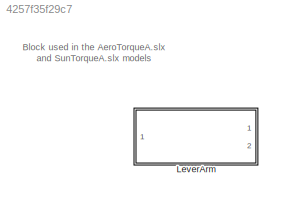
MODEL slx_4257f35f29c7
KIND library
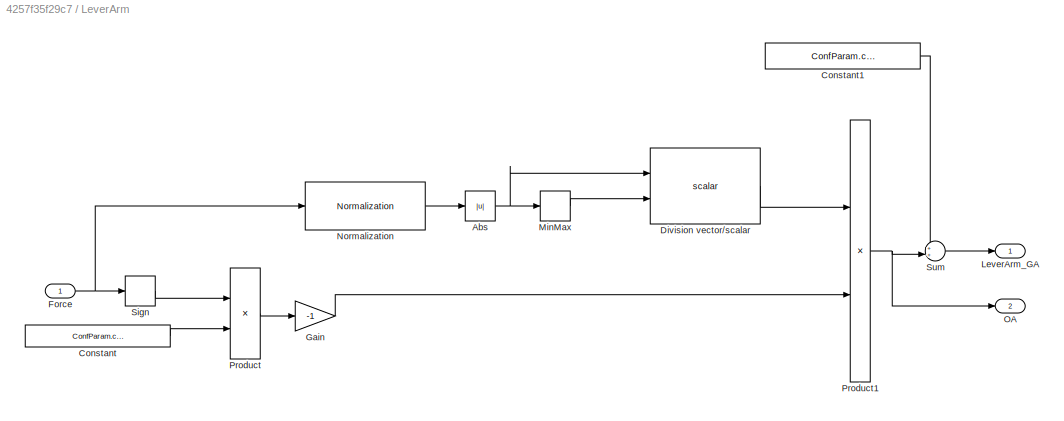
BLOCK [SubSystem] LeverArm
  Ports = [1, 2]
  RequestExecContextInheritance = off
BLOCK [Abs] LeverArm/Abs
  SaturateOnIntegerOverflow = off
BLOCK [Constant] LeverArm/Constant
  Value = ConfParam.confLeverArm.OA
BLOCK [Constant] LeverArm/Constant1
  Value = ConfParam.confLeverArm.GO
BLOCK [Reference] LeverArm/Division vector//scalar  REF=DivisionVectorScalar/Division vector//scalar
  Ports = [2, 1]
  SourceBlock = DivisionVectorScalar/Division vector//scalar
  SourceType = SubSystem
BLOCK [Inport] LeverArm/Force
  IconDisplay = Port number
BLOCK [Gain] LeverArm/Gain
  Gain = -1
  OutDataTypeStr = Inherit: Inherit via internal rule
  ParamDataTypeStr = Inherit: Inherit via internal rule
  SaturateOnIntegerOverflow = off
BLOCK [Outport] LeverArm/LeverArm_GA
  IconDisplay = Port number
BLOCK [MinMax] LeverArm/MinMax
  Function = max
  InputSameDT = off
  Ports = [1, 1]
  SaturateOnIntegerOverflow = off
BLOCK [Reference] LeverArm/Normalization  REF=Normalization/Normalization
  Ports = [1, 1]
  SourceBlock = Normalization/Normalization
  SourceType = SubSystem
BLOCK [Outport] LeverArm/OA
  IconDisplay = Port number
  Port = 2
BLOCK [Product] LeverArm/Product
  InputSameDT = off
  OutDataTypeStr = Inherit: Inherit via internal rule
  Ports = [2, 1]
  RndMeth = Floor
  SaturateOnIntegerOverflow = off
BLOCK [Product] LeverArm/Product1
  InputSameDT = off
  OutDataTypeStr = Inherit: Inherit via internal rule
  Ports = [2, 1]
  RndMeth = Floor
  SaturateOnIntegerOverflow = off
BLOCK [Signum] LeverArm/Sign
BLOCK [Sum] LeverArm/Sum
  IconShape = round
  InputSameDT = off
  Inputs = ++|
  OutDataTypeStr = Inherit: Inherit via internal rule
  Ports = [2, 1]
  SaturateOnIntegerOverflow = off
ANNOTATION (root): Block used in the AeroTorqueA.slx and SunTorqueA.slx models
NET LeverArm/Abs:1 -> LeverArm/Division vector//scalar:1, LeverArm/MinMax:1
LINE LeverArm/Constant1:1 -> LeverArm/Sum:1
LINE LeverArm/Constant:1 -> LeverArm/Product:2
LINE LeverArm/Division vector//scalar:1 -> LeverArm/Product1:1
NET LeverArm/Force:1 -> LeverArm/Normalization:1, LeverArm/Sign:1
LINE LeverArm/Gain:1 -> LeverArm/Product1:2
LINE LeverArm/MinMax:1 -> LeverArm/Division vector//scalar:2
LINE LeverArm/Normalization:1 -> LeverArm/Abs:1
NET LeverArm/Product1:1 -> LeverArm/OA:1, LeverArm/Sum:2
LINE LeverArm/Product:1 -> LeverArm/Gain:1
LINE LeverArm/Sign:1 -> LeverArm/Product:1
LINE LeverArm/Sum:1 -> LeverArm/LeverArm_GA:1
note: NET lines group one-source signal fan-out (src -> all destinations, sorted); 1:1 wires keep LINE
